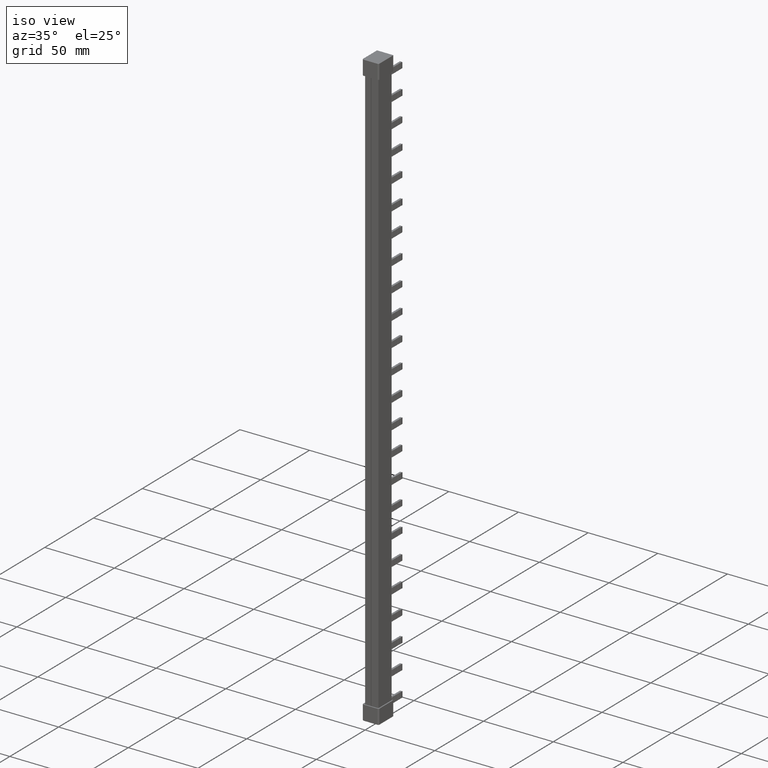
[diagram: clean part render]
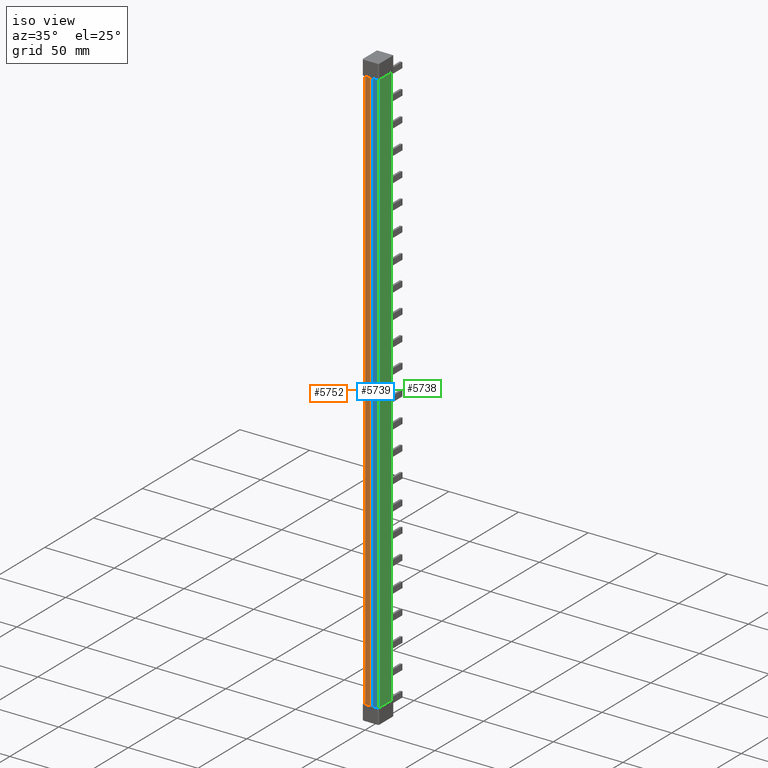
[diagram: same view with three faces highlighted in distinct colors, each labeled with its STEP entity id]
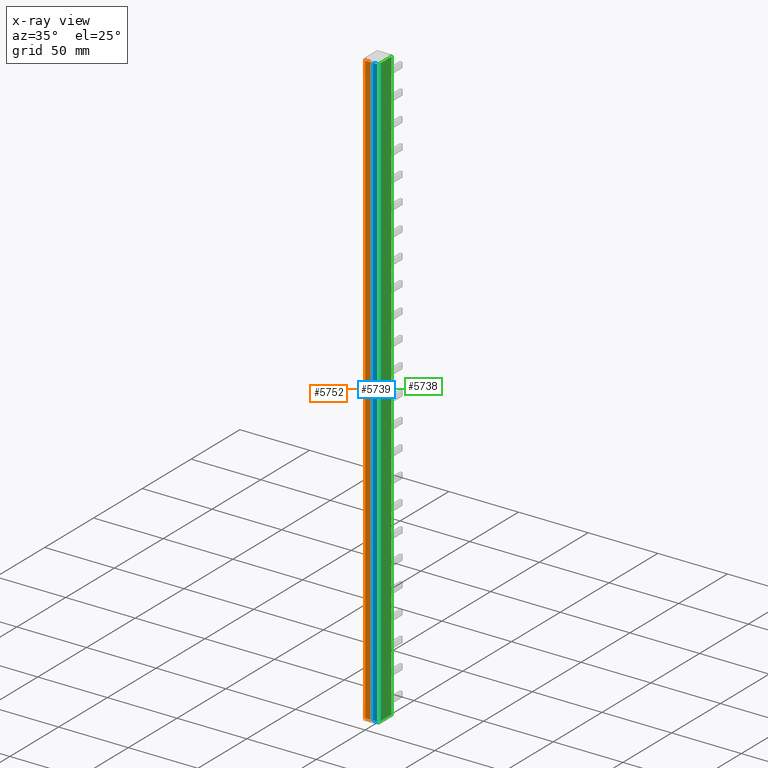
[diagram: x-ray of the same camera — body ghosted, the three highlighted faces saturated]
A machine part, iso view with three faces highlighted in distinct colors.
The next image is the same camera in x-ray (body ghosted, the three faces saturated) — at least one of them is partly hidden behind the body in this view.
Their STEP definitions:

[orange] entity #5752 — the highlighted planar face has unit normal (0, 1, 0).
#3027 = DIRECTION ( 'NONE',  ( 0.0000000000000000000, 1.000000000000000000, 0.0000000000000000000 ) ) ;
#3100 = FACE_OUTER_BOUND ( 'NONE', #28429, .T. ) ;
#3102 = PLANE ( 'NONE',  #3357 ) ;
#3114 = CARTESIAN_POINT ( 'NONE',  ( 0.0000000000000000000, 0.0000000000000000000, 217.7999999999999800 ) ) ;
#3115 = DIRECTION ( 'NONE',  ( 0.0000000000000000000, -0.0000000000000000000, 1.000000000000000000 ) ) ;
#3357 = AXIS2_PLACEMENT_3D ( 'NONE', #3114, #3027, #3115 ) ;
#5752 = ADVANCED_FACE ( 'NONE', ( #3100 ), #3102, .F. ) ;
#7890 = LINE ( 'NONE', #7906, #23340 ) ;
#7906 = CARTESIAN_POINT ( 'NONE',  ( 0.0000000000000000000, 0.0000000000000000000, 217.8000000000000100 ) ) ;
#7907 = DIRECTION ( 'NONE',  ( 1.000000000000000000, 0.0000000000000000000, -0.0000000000000000000 ) ) ;
#18162 = ORIENTED_EDGE ( 'NONE', *, *, #37698, .T. ) ;
#18192 = ORIENTED_EDGE ( 'NONE', *, *, #37735, .T. ) ;
#18204 = ORIENTED_EDGE ( 'NONE', *, *, #37617, .F. ) ;
#18222 = ORIENTED_EDGE ( 'NONE', *, *, #37780, .F. ) ;
#18240 = ORIENTED_EDGE ( 'NONE', *, *, #37684, .F. ) ;
#18278 = ORIENTED_EDGE ( 'NONE', *, *, #37794, .T. ) ;
#23319 = VECTOR ( 'NONE', #23503, 1000.000000000000000 ) ;
#23340 = VECTOR ( 'NONE', #7907, 1000.000000000000000 ) ;
#23393 = VECTOR ( 'NONE', #23671, 1000.000000000000000 ) ;
#23398 = VECTOR ( 'NONE', #23505, 1000.000000000000000 ) ;
#23501 = CARTESIAN_POINT ( 'NONE',  ( 4.000000000000447600, 0.0000000000000000000, 217.7999999999999800 ) ) ;
#23503 = DIRECTION ( 'NONE',  ( -0.0000000000000000000, 0.0000000000000000000, -1.000000000000000000 ) ) ;
#23505 = DIRECTION ( 'NONE',  ( 0.0000000000000000000, 0.0000000000000000000, -1.000000000000000000 ) ) ;
#23510 = LINE ( 'NONE', #23524, #23398 ) ;
#23524 = CARTESIAN_POINT ( 'NONE',  ( 0.0000000000000000000, -3.642919299551294900E-014, 217.7999999999999800 ) ) ;
#23526 = LINE ( 'NONE', #23501, #23319 ) ;
#23561 = CARTESIAN_POINT ( 'NONE',  ( 0.002366559179945501900, -1.626303258728256700E-016, -208.7999670688621200 ) ) ;
#23563 = CARTESIAN_POINT ( 'NONE',  ( 2.152569572241859400E-011, -1.829591166069288700E-014, -208.7999030758348100 ) ) ;
#23631 = CARTESIAN_POINT ( 'NONE',  ( 0.007101611353550279200, 2.467444652461472900E-008, -208.7999999931189700 ) ) ;
#23633 = CARTESIAN_POINT ( 'NONE',  ( 0.004734187274677887200, 1.626303258728256700E-016, -208.7999992954897600 ) ) ;
#23641 = LINE ( 'NONE', #23669, #23393 ) ;
#23669 = CARTESIAN_POINT ( 'NONE',  ( 0.0000000000000000000, 0.0000000000000000000, -208.8000000000028300 ) ) ;
#23671 = DIRECTION ( 'NONE',  ( -1.000000000000000000, -0.0000000000000000000, 0.0000000000000000000 ) ) ;
#23707 = CARTESIAN_POINT ( 'NONE',  ( 0.004786233434235866900, -8.131516293641283300E-017, 217.8000000000000100 ) ) ;
#23713 = CARTESIAN_POINT ( 'NONE',  ( 3.021603118951639100E-027, -3.241764495731658300E-014, 217.7999030758261700 ) ) ;
#23715 = CARTESIAN_POINT ( 'NONE',  ( 0.002392569264056993100, 0.0000000000000000000, 217.7999677721837800 ) ) ;
#23725 = CARTESIAN_POINT ( 'NONE',  ( 0.007179677250580122400, 7.752045533271356700E-015, 217.8000000000000100 ) ) ;
#28429 = EDGE_LOOP ( 'NONE', ( #18162, #18192, #18222, #18240, #18204, #18278 ) ) ;
#30991 = B_SPLINE_CURVE_WITH_KNOTS ( 'NONE', 3,
 ( #23563, #23561, #23633, #23631 ),
 .UNSPECIFIED., .F., .F.,
 ( 4, 4 ),
 ( 2.153142645563013600E-014, 7.102272544969369200E-006 ),
 .UNSPECIFIED. ) ;
#31039 = B_SPLINE_CURVE_WITH_KNOTS ( 'NONE', 3,
 ( #23725, #23707, #23715, #23713 ),
 .UNSPECIFIED., .F., .F.,
 ( 4, 4 ),
 ( 2.168404344971008900E-019, 7.180331449033063700E-006 ),
 .UNSPECIFIED. ) ;
#34706 = VERTEX_POINT ( 'NONE', #41464 ) ;
#34740 = VERTEX_POINT ( 'NONE', #41535 ) ;
#34758 = VERTEX_POINT ( 'NONE', #41573 ) ;
#34760 = VERTEX_POINT ( 'NONE', #41572 ) ;
#34761 = VERTEX_POINT ( 'NONE', #41528 ) ;
#34765 = VERTEX_POINT ( 'NONE', #41545 ) ;
#37617 = EDGE_CURVE ( 'NONE', #34758, #34760, #7890, .T. ) ;
#37684 = EDGE_CURVE ( 'NONE', #34760, #34765, #23526, .T. ) ;
#37698 = EDGE_CURVE ( 'NONE', #34740, #34706, #23510, .T. ) ;
#37735 = EDGE_CURVE ( 'NONE', #34706, #34761, #30991, .T. ) ;
#37780 = EDGE_CURVE ( 'NONE', #34765, #34761, #23641, .T. ) ;
#37794 = EDGE_CURVE ( 'NONE', #34758, #34740, #31039, .T. ) ;
#41464 = CARTESIAN_POINT ( 'NONE',  ( 2.152569572241859400E-011, -1.829591166069288700E-014, -208.7999030758348100 ) ) ;
#41528 = CARTESIAN_POINT ( 'NONE',  ( 0.007101611353550279200, 2.467444652461472900E-008, -208.7999999931189700 ) ) ;
#41535 = CARTESIAN_POINT ( 'NONE',  ( 3.021603118951639100E-027, -3.241764495731658300E-014, 217.7999030758261700 ) ) ;
#41545 = CARTESIAN_POINT ( 'NONE',  ( 4.000000000000447600, 0.0000000000000000000, -208.8000000000028300 ) ) ;
#41572 = CARTESIAN_POINT ( 'NONE',  ( 4.000000000000447600, 0.0000000000000000000, 217.7999999999999300 ) ) ;
#41573 = CARTESIAN_POINT ( 'NONE',  ( 0.007179677250580122400, 7.752045533271356700E-015, 217.8000000000000100 ) ) ;

[blue] entity #5739 — the highlighted planar face has unit normal (0, -1, 0).
#2930 = DIRECTION ( 'NONE',  ( 0.0000000000000000000, -0.0000000000000000000, -1.000000000000000000 ) ) ;
#2961 = FACE_OUTER_BOUND ( 'NONE', #28359, .T. ) ;
#2979 = DIRECTION ( 'NONE',  ( 0.0000000000000000000, -1.000000000000000000, 0.0000000000000000000 ) ) ;
#2986 = CARTESIAN_POINT ( 'NONE',  ( 6.099999999999830900, 0.0000000000000000000, 217.7999999999999800 ) ) ;
#3003 = PLANE ( 'NONE',  #3286 ) ;
#3286 = AXIS2_PLACEMENT_3D ( 'NONE', #2986, #2979, #2930 ) ;
#5739 = ADVANCED_FACE ( 'NONE', ( #2961 ), #3003, .T. ) ;
#7789 = LINE ( 'NONE', #7804, #23295 ) ;
#7803 = LINE ( 'NONE', #7868, #23298 ) ;
#7804 = CARTESIAN_POINT ( 'NONE',  ( 8.900000000277932700, -5.421010862427522200E-017, 217.7999999999938400 ) ) ;
#7847 = DIRECTION ( 'NONE',  ( 0.0000000000000000000, -0.0000000000000000000, -1.000000000000000000 ) ) ;
#7849 = DIRECTION ( 'NONE',  ( -1.000000000000000000, -0.0000000000000000000, 6.924738560343257600E-013 ) ) ;
#7868 = CARTESIAN_POINT ( 'NONE',  ( 5.599999999999383200, 0.0000000000000000000, 217.7999999999999800 ) ) ;
#18180 = ORIENTED_EDGE ( 'NONE', *, *, #37581, .T. ) ;
#18184 = ORIENTED_EDGE ( 'NONE', *, *, #37690, .T. ) ;
#18214 = ORIENTED_EDGE ( 'NONE', *, *, #37586, .T. ) ;
#18218 = ORIENTED_EDGE ( 'NONE', *, *, #37741, .T. ) ;
#18270 = ORIENTED_EDGE ( 'NONE', *, *, #37779, .T. ) ;
#18338 = ORIENTED_EDGE ( 'NONE', *, *, #37743, .T. ) ;
#23295 = VECTOR ( 'NONE', #7849, 1000.000000000000000 ) ;
#23298 = VECTOR ( 'NONE', #7847, 1000.000000000000000 ) ;
#23350 = VECTOR ( 'NONE', #23625, 1000.000000000000000 ) ;
#23356 = VECTOR ( 'NONE', #23533, 1000.000000000000000 ) ;
#23506 = CARTESIAN_POINT ( 'NONE',  ( 8.899999999980860100, 0.0000000000000000000, -208.8000000000062100 ) ) ;
#23525 = LINE ( 'NONE', #23506, #23356 ) ;
#23533 = DIRECTION ( 'NONE',  ( 1.000000000000000000, -0.0000000000000000000, -6.924738560343257600E-013 ) ) ;
#23598 = LINE ( 'NONE', #23629, #23350 ) ;
#23603 = CARTESIAN_POINT ( 'NONE',  ( 9.597638590679721900, -4.336808689942017700E-016, -208.7999669296134500 ) ) ;
#23622 = CARTESIAN_POINT ( 'NONE',  ( 9.599999999999830900, -7.074419175467916400E-015, -208.7999030758397500 ) ) ;
#23625 = DIRECTION ( 'NONE',  ( -0.0000000000000000000, 0.0000000000000000000, 1.000000000000000000 ) ) ;
#23626 = CARTESIAN_POINT ( 'NONE',  ( 9.595276117496897700, 2.439454888092385000E-016, -208.7999991550966000 ) ) ;
#23629 = CARTESIAN_POINT ( 'NONE',  ( 9.599999999999830900, 0.0000000000000000000, 217.7999999999999800 ) ) ;
#23630 = CARTESIAN_POINT ( 'NONE',  ( 9.592913845163144200, 2.357062938926346400E-008, -208.7999999934146200 ) ) ;
#23647 = CARTESIAN_POINT ( 'NONE',  ( 9.597607430918538200, 2.439454888092385000E-016, 217.7999677721823000 ) ) ;
#23649 = CARTESIAN_POINT ( 'NONE',  ( 9.595213766931376400, 1.084202172485504400E-016, 217.7999999999935000 ) ) ;
#23664 = CARTESIAN_POINT ( 'NONE',  ( 9.599999999999830900, -1.086912677916718200E-014, 217.7999030758346600 ) ) ;
#23679 = CARTESIAN_POINT ( 'NONE',  ( 9.592820323297996100, 8.673617379884035500E-017, 217.7999999999934200 ) ) ;
#28359 = EDGE_LOOP ( 'NONE', ( #18214, #18184, #18338, #18218, #18270, #18180 ) ) ;
#30993 = B_SPLINE_CURVE_WITH_KNOTS ( 'NONE', 3,
 ( #23630, #23626, #23603, #23622 ),
 .UNSPECIFIED., .F., .F.,
 ( 4, 4 ),
 ( 0.0000000000000000000, 7.086817447452305400E-006 ),
 .UNSPECIFIED. ) ;
#31041 = B_SPLINE_CURVE_WITH_KNOTS ( 'NONE', 3,
 ( #23664, #23647, #23649, #23679 ),
 .UNSPECIFIED., .F., .F.,
 ( 4, 4 ),
 ( 0.0000000000000000000, 7.180330900132590700E-006 ),
 .UNSPECIFIED. ) ;
#34718 = VERTEX_POINT ( 'NONE', #41470 ) ;
#34751 = VERTEX_POINT ( 'NONE', #41567 ) ;
#34767 = VERTEX_POINT ( 'NONE', #41577 ) ;
#34768 = VERTEX_POINT ( 'NONE', #41530 ) ;
#34782 = VERTEX_POINT ( 'NONE', #41550 ) ;
#34825 = VERTEX_POINT ( 'NONE', #41621 ) ;
#37581 = EDGE_CURVE ( 'NONE', #34718, #34768, #7789, .T. ) ;
#37586 = EDGE_CURVE ( 'NONE', #34768, #34767, #7803, .T. ) ;
#37690 = EDGE_CURVE ( 'NONE', #34767, #34782, #23525, .T. ) ;
#37741 = EDGE_CURVE ( 'NONE', #34751, #34825, #23598, .T. ) ;
#37743 = EDGE_CURVE ( 'NONE', #34782, #34751, #30993, .T. ) ;
#37779 = EDGE_CURVE ( 'NONE', #34825, #34718, #31041, .T. ) ;
#41470 = CARTESIAN_POINT ( 'NONE',  ( 9.592820323297996100, 8.673617379884035500E-017, 217.7999999999934200 ) ) ;
#41530 = CARTESIAN_POINT ( 'NONE',  ( 5.599999999999383200, -2.409338161078898500E-017, 217.7999999999956300 ) ) ;
#41550 = CARTESIAN_POINT ( 'NONE',  ( 9.592913845163144200, 2.357062938926346400E-008, -208.7999999934146200 ) ) ;
#41567 = CARTESIAN_POINT ( 'NONE',  ( 9.599999999999830900, -7.074419175467916400E-015, -208.7999030758397500 ) ) ;
#41577 = CARTESIAN_POINT ( 'NONE',  ( 5.599999999999383200, -6.023345402697246300E-018, -208.8000000000039300 ) ) ;
#41621 = CARTESIAN_POINT ( 'NONE',  ( 9.599999999999830900, -1.086912677916718200E-014, 217.7999030758346600 ) ) ;

[green] entity #5738 — the highlighted planar face has unit normal (1, -0, 0).
#2921 = PLANE ( 'NONE',  #3361 ) ;
#2923 = DIRECTION ( 'NONE',  ( 1.000000000000000000, -0.0000000000000000000, 0.0000000000000000000 ) ) ;
#2928 = DIRECTION ( 'NONE',  ( 0.0000000000000000000, 0.0000000000000000000, -1.000000000000000000 ) ) ;
#2951 = CARTESIAN_POINT ( 'NONE',  ( 9.599999999999830900, 0.0000000000000000000, -106.2000000000000200 ) ) ;
#2957 = FACE_OUTER_BOUND ( 'NONE', #28358, .T. ) ;
#3361 = AXIS2_PLACEMENT_3D ( 'NONE', #2951, #2923, #2928 ) ;
#5738 = ADVANCED_FACE ( 'NONE', ( #2957 ), #2921, .T. ) ;
#7126 = CARTESIAN_POINT ( 'NONE',  ( 9.599999999999830900, 0.0000000000000000000, 217.7999999999962900 ) ) ;
#7352 = DIRECTION ( 'NONE',  ( -0.0000000000000000000, -1.000000000000000000, -0.0000000000000000000 ) ) ;
#7829 = LINE ( 'NONE', #7832, #23322 ) ;
#7832 = CARTESIAN_POINT ( 'NONE',  ( 9.599999999999830900, 13.49999999999998400, -106.2000000000000200 ) ) ;
#7840 = DIRECTION ( 'NONE',  ( -0.0000000000000000000, -0.0000000000000000000, 1.000000000000000000 ) ) ;
#7947 = LINE ( 'NONE', #7126, #23342 ) ;
#7949 = CARTESIAN_POINT ( 'NONE',  ( 9.599999999999830900, -7.074419175467916400E-015, -208.7999030758397500 ) ) ;
#7952 = CARTESIAN_POINT ( 'NONE',  ( 9.599999999999830900, 0.004182737779993817500, -208.7999677063948500 ) ) ;
#18202 = ORIENTED_EDGE ( 'NONE', *, *, #37730, .T. ) ;
#18210 = ORIENTED_EDGE ( 'NONE', *, *, #37607, .T. ) ;
#18232 = ORIENTED_EDGE ( 'NONE', *, *, #37767, .T. ) ;
#18258 = ORIENTED_EDGE ( 'NONE', *, *, #37677, .T. ) ;
#18272 = ORIENTED_EDGE ( 'NONE', *, *, #37741, .F. ) ;
#18358 = ORIENTED_EDGE ( 'NONE', *, *, #37674, .T. ) ;
#23322 = VECTOR ( 'NONE', #7840, 1000.000000000000000 ) ;
#23342 = VECTOR ( 'NONE', #7352, 1000.000000000000000 ) ;
#23350 = VECTOR ( 'NONE', #23625, 1000.000000000000000 ) ;
#23363 = VECTOR ( 'NONE', #23560, 1000.000000000000000 ) ;
#23542 = CARTESIAN_POINT ( 'NONE',  ( 9.599999991510671300, 0.01254933704759400400, -208.7999999891301600 ) ) ;
#23550 = LINE ( 'NONE', #23556, #23363 ) ;
#23556 = CARTESIAN_POINT ( 'NONE',  ( 9.599999999999830900, 0.0000000000000000000, -208.7999999864110500 ) ) ;
#23560 = DIRECTION ( 'NONE',  ( 0.0000000000000000000, 1.000000000000000000, 0.0000000000000000000 ) ) ;
#23595 = CARTESIAN_POINT ( 'NONE',  ( 9.600000000031695200, 0.01270166533927379600, 217.7999999999939900 ) ) ;
#23598 = LINE ( 'NONE', #23629, #23350 ) ;
#23599 = CARTESIAN_POINT ( 'NONE',  ( 9.599999999999830900, 0.008467653626121443200, 217.7999999999957500 ) ) ;
#23625 = DIRECTION ( 'NONE',  ( -0.0000000000000000000, 0.0000000000000000000, 1.000000000000000000 ) ) ;
#23629 = CARTESIAN_POINT ( 'NONE',  ( 9.599999999999830900, 0.0000000000000000000, 217.7999999999999800 ) ) ;
#23659 = CARTESIAN_POINT ( 'NONE',  ( 9.599999999999830900, 0.004233506355581258600, 217.7999684908496400 ) ) ;
#23665 = CARTESIAN_POINT ( 'NONE',  ( 9.599999999999830900, -1.086912677916718200E-014, 217.7999030758346600 ) ) ;
#24886 = CARTESIAN_POINT ( 'NONE',  ( 9.599999999999830900, 0.008366100037484763100, -208.7999992393202700 ) ) ;
#28358 = EDGE_LOOP ( 'NONE', ( #18232, #18272, #18258, #18202, #18210, #18358 ) ) ;
#30988 = B_SPLINE_CURVE_WITH_KNOTS ( 'NONE', 3,
 ( #7949, #7952, #24886, #23542 ),
 .UNSPECIFIED., .F., .F.,
 ( 4, 4 ),
 ( 6.748756062140754200E-018, 1.254971123192126100E-005 ),
 .UNSPECIFIED. ) ;
#31040 = B_SPLINE_CURVE_WITH_KNOTS ( 'NONE', 3,
 ( #23595, #23599, #23659, #23665 ),
 .UNSPECIFIED., .F., .F.,
 ( 4, 4 ),
 ( 0.0000000000000000000, 1.270203513944679400E-005 ),
 .UNSPECIFIED. ) ;
#34722 = VERTEX_POINT ( 'NONE', #41537 ) ;
#34727 = VERTEX_POINT ( 'NONE', #41523 ) ;
#34730 = VERTEX_POINT ( 'NONE', #41536 ) ;
#34751 = VERTEX_POINT ( 'NONE', #41567 ) ;
#34825 = VERTEX_POINT ( 'NONE', #41621 ) ;
#34826 = VERTEX_POINT ( 'NONE', #41623 ) ;
#37607 = EDGE_CURVE ( 'NONE', #34730, #34722, #7829, .T. ) ;
#37674 = EDGE_CURVE ( 'NONE', #34722, #34727, #7947, .T. ) ;
#37677 = EDGE_CURVE ( 'NONE', #34751, #34826, #30988, .T. ) ;
#37730 = EDGE_CURVE ( 'NONE', #34826, #34730, #23550, .T. ) ;
#37741 = EDGE_CURVE ( 'NONE', #34751, #34825, #23598, .T. ) ;
#37767 = EDGE_CURVE ( 'NONE', #34727, #34825, #31040, .T. ) ;
#41523 = CARTESIAN_POINT ( 'NONE',  ( 9.600000000031695200, 0.01270166533927379600, 217.7999999999939900 ) ) ;
#41536 = CARTESIAN_POINT ( 'NONE',  ( 9.599999999999830900, 13.49999999999998400, -208.7999999909427200 ) ) ;
#41537 = CARTESIAN_POINT ( 'NONE',  ( 9.599999999999830900, 13.49999999999998400, 217.7999999999952900 ) ) ;
#41567 = CARTESIAN_POINT ( 'NONE',  ( 9.599999999999830900, -7.074419175467916400E-015, -208.7999030758397500 ) ) ;
#41621 = CARTESIAN_POINT ( 'NONE',  ( 9.599999999999830900, -1.086912677916718200E-014, 217.7999030758346600 ) ) ;
#41623 = CARTESIAN_POINT ( 'NONE',  ( 9.599999991510671300, 0.01254933704759400400, -208.7999999891301600 ) ) ;